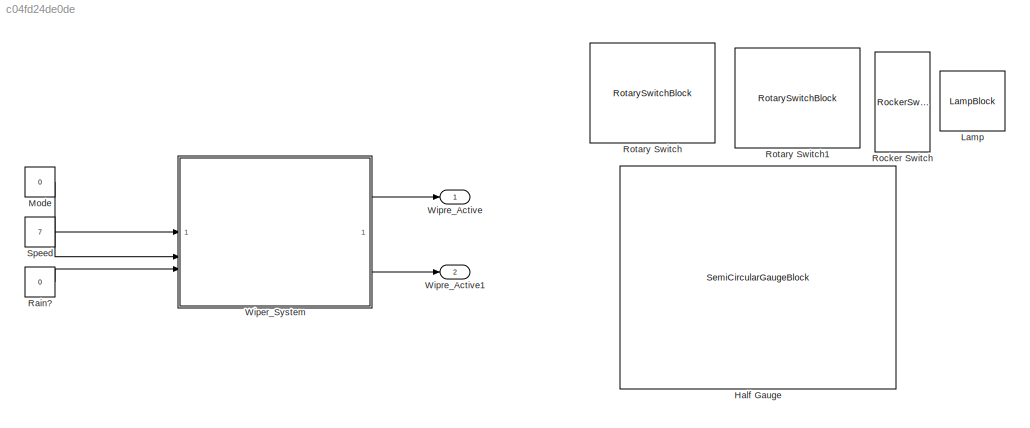
MODEL slx_c04fd24de0de
KIND model
CONFIG AbsTol = auto
CONFIG EnableMultiTasking = off
CONFIG FixedStep = 0.1
CONFIG MaxStep = auto
CONFIG MinStep = auto
CONFIG RelTol = 1e-3
CONFIG SampleTimeConstraint = Unconstrained
CONFIG SolverName = FixedStepAuto
CONFIG StartTime = 0.0
CONFIG StopTime = inf
BLOCK [SemiCircularGaugeBlock] Half Gauge
BLOCK [LampBlock] Lamp
  LabelPosition = Hide
BLOCK [Constant] Mode
  Value = 0
BLOCK [Constant] Rain?
  OutDataTypeStr = boolean
  Value = 0
BLOCK [RockerSwitchBlock] Rocker Switch
BLOCK [RotarySwitchBlock] Rotary Switch
BLOCK [RotarySwitchBlock] Rotary Switch1
BLOCK [Constant] Speed
  Value = 7
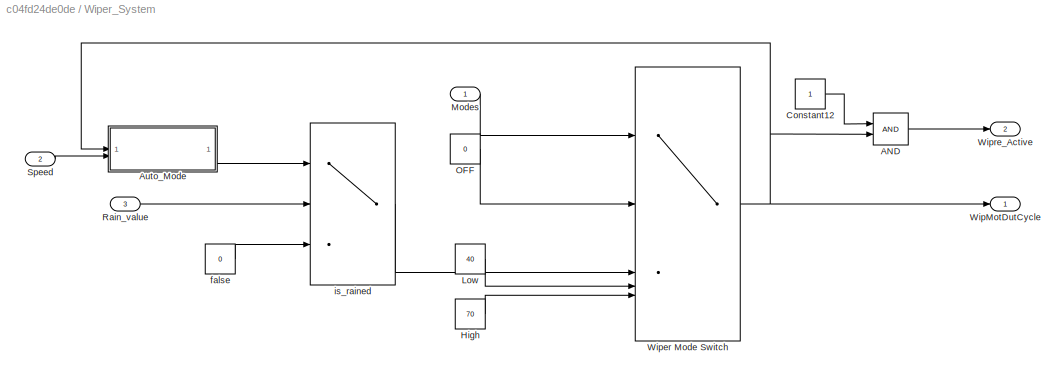
BLOCK [SubSystem] Wiper_System
BLOCK [Logic] Wiper_System/AND
  AllPortsSameDT = off
  IconShape = distinctive
  OutDataTypeStr = boolean
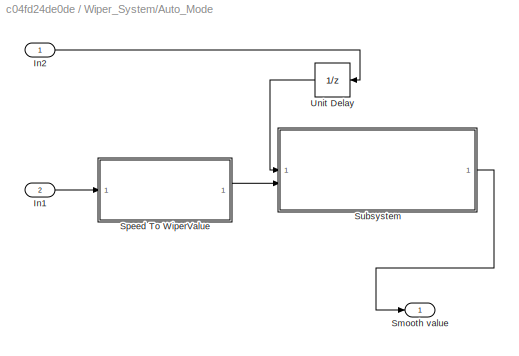
BLOCK [SubSystem] Wiper_System/Auto_Mode
BLOCK [Inport] Wiper_System/Auto_Mode/In1
  Port = 2
BLOCK [Inport] Wiper_System/Auto_Mode/In2
BLOCK [Outport] Wiper_System/Auto_Mode/Smooth value
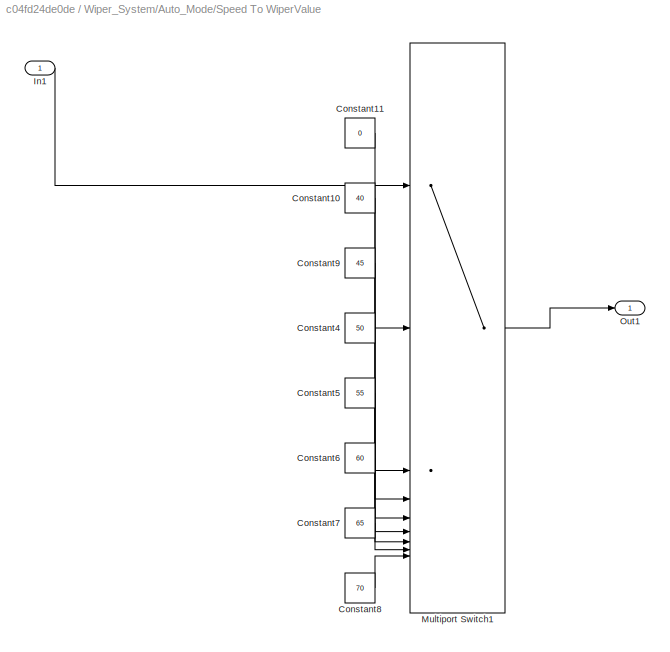
BLOCK [SubSystem] Wiper_System/Auto_Mode/Speed To WiperValue
BLOCK [Constant] Wiper_System/Auto_Mode/Speed To WiperValue/Constant10
  Value = 40
BLOCK [Constant] Wiper_System/Auto_Mode/Speed To WiperValue/Constant11
  Value = 0
BLOCK [Constant] Wiper_System/Auto_Mode/Speed To WiperValue/Constant4
  Value = 50
BLOCK [Constant] Wiper_System/Auto_Mode/Speed To WiperValue/Constant5
  Value = 55
BLOCK [Constant] Wiper_System/Auto_Mode/Speed To WiperValue/Constant6
  Value = 60
BLOCK [Constant] Wiper_System/Auto_Mode/Speed To WiperValue/Constant7
  Value = 65
BLOCK [Constant] Wiper_System/Auto_Mode/Speed To WiperValue/Constant8
  Value = 70
BLOCK [Constant] Wiper_System/Auto_Mode/Speed To WiperValue/Constant9
  Value = 45
BLOCK [Inport] Wiper_System/Auto_Mode/Speed To WiperValue/In1
BLOCK [MultiPortSwitch] Wiper_System/Auto_Mode/Speed To WiperValue/Multiport Switch1
  DataPortOrder = Zero-based contiguous
  InputSameDT = off
  Inputs = 8
  SaturateOnIntegerOverflow = off
  zeroidx = on
BLOCK [Outport] Wiper_System/Auto_Mode/Speed To WiperValue/Out1
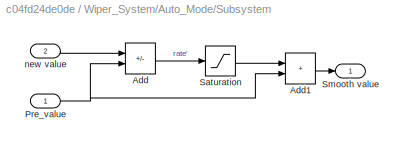
BLOCK [SubSystem] Wiper_System/Auto_Mode/Subsystem
BLOCK [Sum] Wiper_System/Auto_Mode/Subsystem/Add
  IconShape = rectangular
  Inputs = +-
BLOCK [Sum] Wiper_System/Auto_Mode/Subsystem/Add1
  IconShape = rectangular
BLOCK [Inport] Wiper_System/Auto_Mode/Subsystem/Pre_value
BLOCK [Saturate] Wiper_System/Auto_Mode/Subsystem/Saturation
  LowerLimit = -0.005
  UpperLimit = 0.005
BLOCK [Outport] Wiper_System/Auto_Mode/Subsystem/Smooth value
BLOCK [Inport] Wiper_System/Auto_Mode/Subsystem/new value
  Port = 2
BLOCK [UnitDelay] Wiper_System/Auto_Mode/Unit Delay
  HasFrameUpgradeWarning = on
  NameLocation = top
  SampleTime = -1
BLOCK [Constant] Wiper_System/Constant12
BLOCK [Constant] Wiper_System/High
  Value = 70
BLOCK [Constant] Wiper_System/Low
  Value = 40
BLOCK [Inport] Wiper_System/Modes
BLOCK [Constant] Wiper_System/OFF
  Value = 0
BLOCK [Inport] Wiper_System/Rain_value
  Port = 3
BLOCK [Inport] Wiper_System/Speed
  Port = 2
BLOCK [Outport] Wiper_System/WipMotDutCycle
BLOCK [MultiPortSwitch] Wiper_System/Wiper Mode Switch
  DataPortOrder = Zero-based contiguous
  InputSameDT = off
  Inputs = 4
  SaturateOnIntegerOverflow = off
  zeroidx = on
BLOCK [Outport] Wiper_System/Wipre_Active
  Port = 2
BLOCK [Constant] Wiper_System/false
  Value = 0
BLOCK [Switch] Wiper_System/is_rained
  Criteria = u2 > Threshold
  InputSameDT = off
  SaturateOnIntegerOverflow = off
BLOCK [Outport] Wipre_Active
BLOCK [Outport] Wipre_Active1
  Port = 2
LINE Mode:1 -> Wiper_System:1
LINE Rain?:1 -> Wiper_System:3
LINE Speed:1 -> Wiper_System:2
LINE Wiper_System/AND:1 -> Wiper_System/Wipre_Active:1
LINE Wiper_System/Auto_Mode/In1:1 -> Wiper_System/Auto_Mode/Speed To WiperValue:1
LINE Wiper_System/Auto_Mode/In2:1 -> Wiper_System/Auto_Mode/Unit Delay:1
LINE Wiper_System/Auto_Mode/Speed To WiperValue/Constant10:1 -> Wiper_System/Auto_Mode/Speed To WiperValue/Multiport Switch1:3
LINE Wiper_System/Auto_Mode/Speed To WiperValue/Constant11:1 -> Wiper_System/Auto_Mode/Speed To WiperValue/Multiport Switch1:2
LINE Wiper_System/Auto_Mode/Speed To WiperValue/Constant4:1 -> Wiper_System/Auto_Mode/Speed To WiperValue/Multiport Switch1:5
LINE Wiper_System/Auto_Mode/Speed To WiperValue/Constant5:1 -> Wiper_System/Auto_Mode/Speed To WiperValue/Multiport Switch1:6
LINE Wiper_System/Auto_Mode/Speed To WiperValue/Constant6:1 -> Wiper_System/Auto_Mode/Speed To WiperValue/Multiport Switch1:7
LINE Wiper_System/Auto_Mode/Speed To WiperValue/Constant7:1 -> Wiper_System/Auto_Mode/Speed To WiperValue/Multiport Switch1:8
LINE Wiper_System/Auto_Mode/Speed To WiperValue/Constant8:1 -> Wiper_System/Auto_Mode/Speed To WiperValue/Multiport Switch1:9
LINE Wiper_System/Auto_Mode/Speed To WiperValue/Constant9:1 -> Wiper_System/Auto_Mode/Speed To WiperValue/Multiport Switch1:4
LINE Wiper_System/Auto_Mode/Speed To WiperValue/In1:1 -> Wiper_System/Auto_Mode/Speed To WiperValue/Multiport Switch1:1
LINE Wiper_System/Auto_Mode/Speed To WiperValue/Multiport Switch1:1 -> Wiper_System/Auto_Mode/Speed To WiperValue/Out1:1
LINE Wiper_System/Auto_Mode/Speed To WiperValue:1 -> Wiper_System/Auto_Mode/Subsystem:2
LINE Wiper_System/Auto_Mode/Subsystem/Add1:1 -> Wiper_System/Auto_Mode/Subsystem/Smooth value:1
LINE Wiper_System/Auto_Mode/Subsystem/Add:1 -> Wiper_System/Auto_Mode/Subsystem/Saturation:1
NET Wiper_System/Auto_Mode/Subsystem/Pre_value:1 -> Wiper_System/Auto_Mode/Subsystem/Add1:2, Wiper_System/Auto_Mode/Subsystem/Add:2
LINE Wiper_System/Auto_Mode/Subsystem/Saturation:1 -> Wiper_System/Auto_Mode/Subsystem/Add1:1
LINE Wiper_System/Auto_Mode/Subsystem/new value:1 -> Wiper_System/Auto_Mode/Subsystem/Add:1
LINE Wiper_System/Auto_Mode/Subsystem:1 -> Wiper_System/Auto_Mode/Smooth value:1
LINE Wiper_System/Auto_Mode/Unit Delay:1 -> Wiper_System/Auto_Mode/Subsystem:1
LINE Wiper_System/Auto_Mode:1 -> Wiper_System/is_rained:1
LINE Wiper_System/Constant12:1 -> Wiper_System/AND:1
LINE Wiper_System/High:1 -> Wiper_System/Wiper Mode Switch:5
LINE Wiper_System/Low:1 -> Wiper_System/Wiper Mode Switch:4
LINE Wiper_System/Modes:1 -> Wiper_System/Wiper Mode Switch:1
LINE Wiper_System/OFF:1 -> Wiper_System/Wiper Mode Switch:2
LINE Wiper_System/Rain_value:1 -> Wiper_System/is_rained:2
LINE Wiper_System/Speed:1 -> Wiper_System/Auto_Mode:2
NET Wiper_System/Wiper Mode Switch:1 -> Wiper_System/AND:2, Wiper_System/Auto_Mode:1, Wiper_System/WipMotDutCycle:1
LINE Wiper_System/false:1 -> Wiper_System/is_rained:3
LINE Wiper_System/is_rained:1 -> Wiper_System/Wiper Mode Switch:3
LINE Wiper_System:1 -> Wipre_Active:1
LINE Wiper_System:2 -> Wipre_Active1:1
note: NET lines group one-source signal fan-out (src -> all destinations, sorted); 1:1 wires keep LINE
